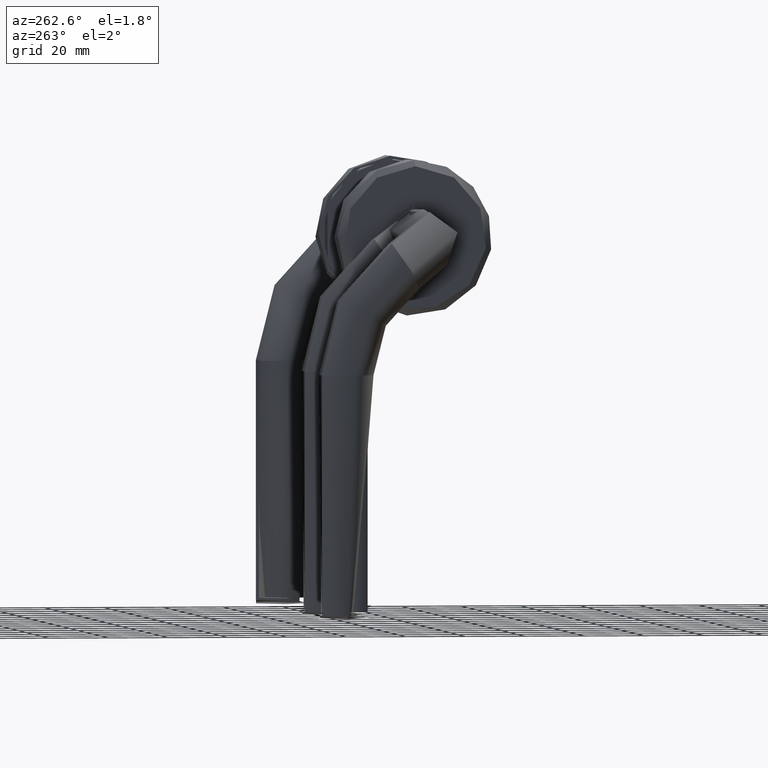
[diagram: clean part render]
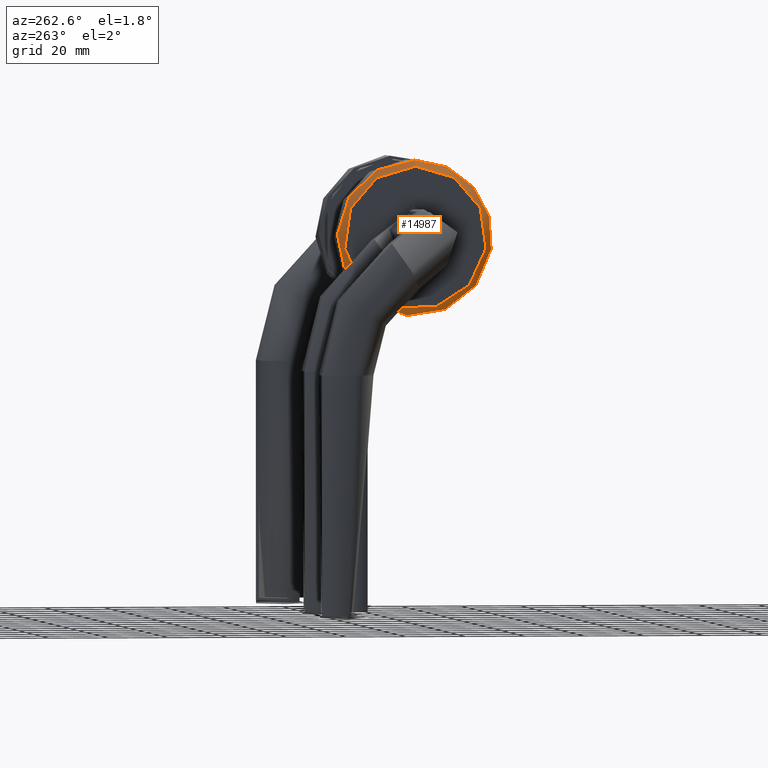
[diagram: same view with one face highlighted and labeled with its STEP entity id]
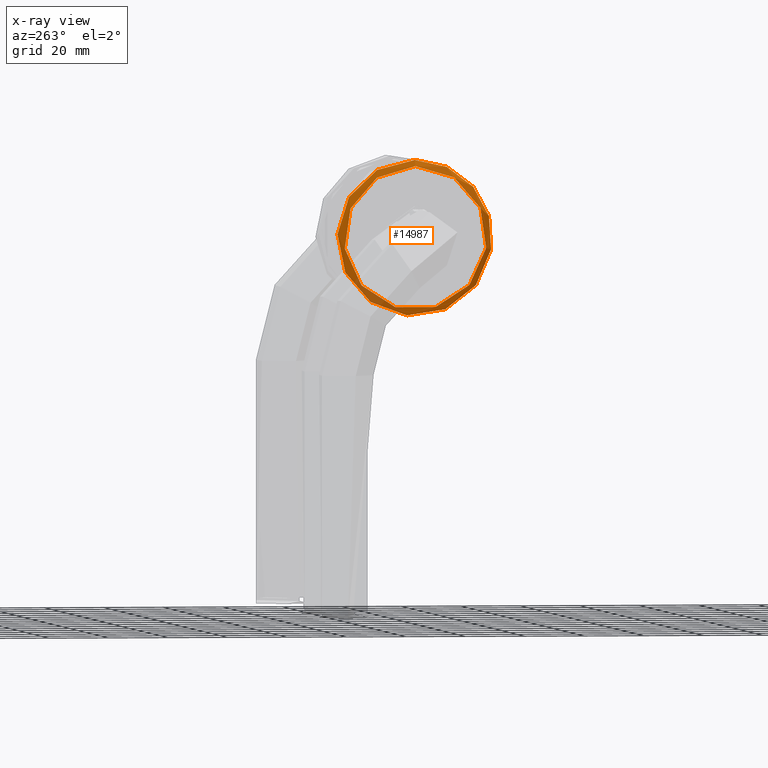
[diagram: x-ray of the same camera — body ghosted, the highlighted face saturated]
A machine part, auxiliary view. The second image highlights one B-rep face of the part: STEP entity #14987.
The next image is the same camera in x-ray: the body ghosted, the highlighted face saturated — about 11% of this face is hidden behind the body in this view.
In plain terms, the highlighted toroidal blend (fillet) surface has major radius 24 mm and minor (blend) radius 2 mm.
Its self-contained STEP definition (entity closure, byte-faithful):
#2304 = CARTESIAN_POINT ( 'NONE',  ( 0.0000000000000000000, 0.0000000000000000000, 8.500000000000000000 ) ) ;
#2344 = VERTEX_POINT ( 'NONE', #11826 ) ;
#3020 = CARTESIAN_POINT ( 'NONE',  ( 0.0000000000000000000, 0.0000000000000000000, 10.50000000000000000 ) ) ;
#4515 = ORIENTED_EDGE ( 'NONE', *, *, #8892, .F. ) ;
#4815 = EDGE_CURVE ( 'NONE', #2344, #2344, #19732, .T. ) ;
#5567 = DIRECTION ( 'NONE',  ( -0.0000000000000000000, -0.0000000000000000000, -1.000000000000000000 ) ) ;
#8786 = DIRECTION ( 'NONE',  ( 1.000000000000000000, 0.0000000000000000000, 0.0000000000000000000 ) ) ;
#8892 = EDGE_CURVE ( 'NONE', #30581, #30581, #8900, .T. ) ;
#8900 = CIRCLE ( 'NONE', #23036, 24.00000000000000000 ) ;
#10353 = EDGE_LOOP ( 'NONE', ( #11206 ) ) ;
#10826 = DIRECTION ( 'NONE',  ( 0.0000000000000000000, 0.0000000000000000000, 1.000000000000000000 ) ) ;
#11206 = ORIENTED_EDGE ( 'NONE', *, *, #4815, .F. ) ;
#11826 = CARTESIAN_POINT ( 'NONE',  ( 26.00000000000000400, 0.0000000000000000000, 8.500000000000000000 ) ) ;
#13597 = DIRECTION ( 'NONE',  ( 1.000000000000000000, 0.0000000000000000000, 0.0000000000000000000 ) ) ;
#14987 = ADVANCED_FACE ( 'NONE', ( #23899, #26594 ), #16317, .T. ) ;
#16317 = TOROIDAL_SURFACE ( 'NONE', #34930, 24.00000000000000000, 2.000000000000000000 ) ;
#19732 = CIRCLE ( 'NONE', #24180, 26.00000000000000400 ) ;
#19763 = EDGE_LOOP ( 'NONE', ( #4515 ) ) ;
#19886 = CARTESIAN_POINT ( 'NONE',  ( 24.00000000000000000, 0.0000000000000000000, 10.50000000000000000 ) ) ;
#22844 = DIRECTION ( 'NONE',  ( 1.000000000000000000, 0.0000000000000000000, 0.0000000000000000000 ) ) ;
#22940 = DIRECTION ( 'NONE',  ( 0.0000000000000000000, 0.0000000000000000000, 1.000000000000000000 ) ) ;
#23036 = AXIS2_PLACEMENT_3D ( 'NONE', #3020, #22940, #8786 ) ;
#23899 = FACE_OUTER_BOUND ( 'NONE', #10353, .T. ) ;
#24180 = AXIS2_PLACEMENT_3D ( 'NONE', #36880, #5567, #22844 ) ;
#26594 = FACE_OUTER_BOUND ( 'NONE', #19763, .T. ) ;
#30581 = VERTEX_POINT ( 'NONE', #19886 ) ;
#34930 = AXIS2_PLACEMENT_3D ( 'NONE', #2304, #10826, #13597 ) ;
#36880 = CARTESIAN_POINT ( 'NONE',  ( 0.0000000000000000000, 0.0000000000000000000, 8.500000000000000000 ) ) ;